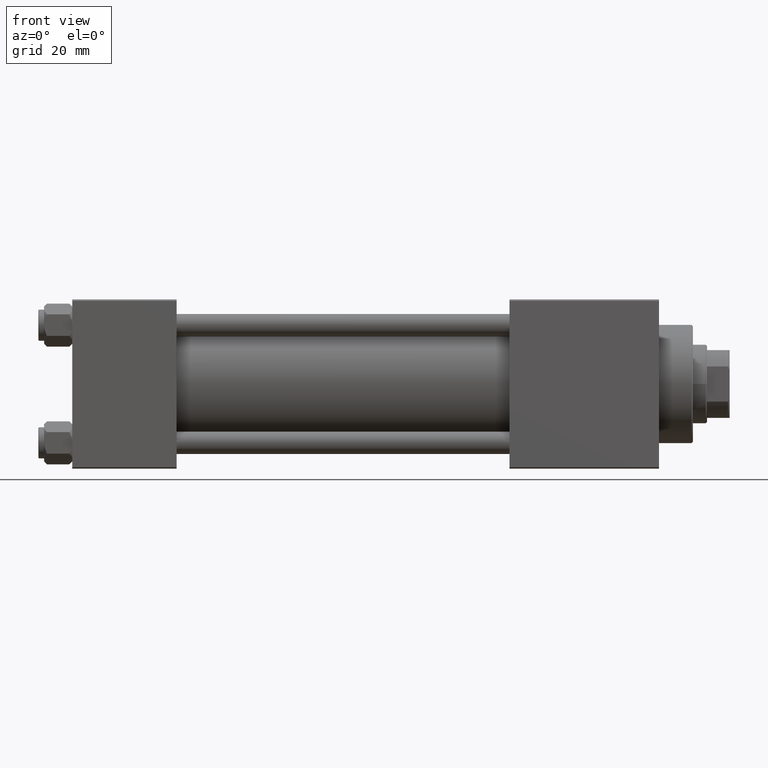
[diagram: clean part render]
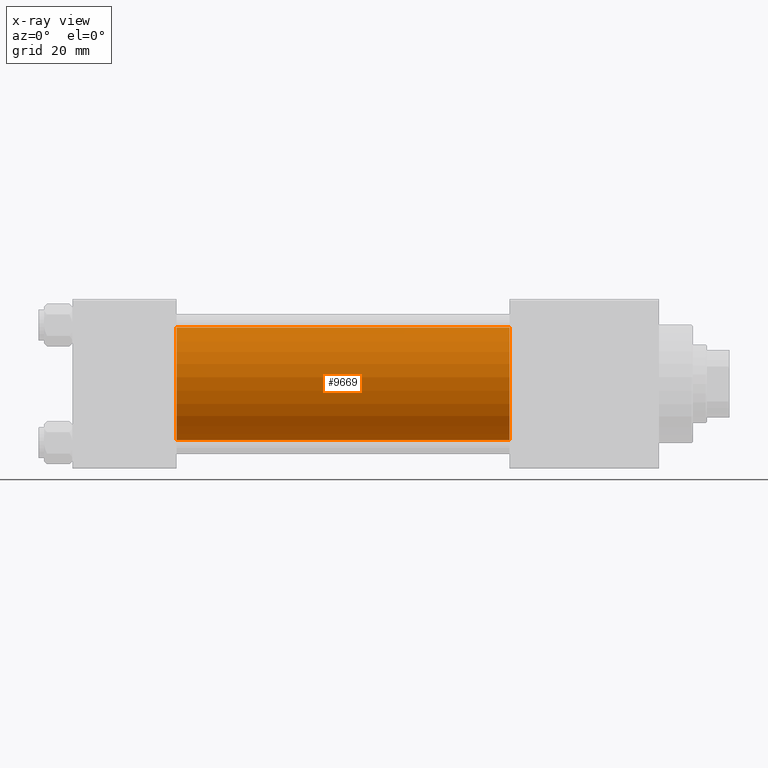
[diagram: x-ray — body ghosted, one internal face saturated and labeled with its STEP entity id]
A machine part, front view, then the same camera in x-ray: the body is ghosted and one INTERNAL B-rep face — a face not visible from any outside direction — is saturated and labeled: STEP entity #9669.
In plain terms, the highlighted cylindrical surface (partial cylindrical patch) has radius 20 mm, axis along (-1, -0, -0).
Its self-contained STEP definition (entity closure, byte-faithful):
#1754 = DIRECTION ( 'NONE',  ( 1.000000000000000000, 0.000000000000000000, 0.000000000000000000 ) ) ;
#2107 = VERTEX_POINT ( 'NONE', #9193 ) ;
#2424 = ORIENTED_EDGE ( 'NONE', *, *, #23665, .T. ) ;
#4435 = DIRECTION ( 'NONE',  ( 1.000000000000000000, 0.000000000000000000, 0.000000000000000000 ) ) ;
#7907 = CARTESIAN_POINT ( 'NONE',  ( 155.0000000000000000, -1.527916156705042519E-16, -20.00000000000000000 ) ) ;
#8621 = FACE_OUTER_BOUND ( 'NONE', #8988, .T. ) ;
#8988 = EDGE_LOOP ( 'NONE', ( #19120, #2424, #39066, #42269 ) ) ;
#9193 = CARTESIAN_POINT ( 'NONE',  ( 37.00000000000000000, -2.602085213965210642E-15, 20.00000000000000000 ) ) ;
#9465 = CARTESIAN_POINT ( 'NONE',  ( 155.0000000000000000, -2.602085213965210642E-15, 20.00000000000000000 ) ) ;
#9669 = ADVANCED_FACE ( 'NONE', ( #8621 ), #40946, .F. ) ;
#10223 = EDGE_CURVE ( 'NONE', #47767, #46737, #11723, .T. ) ;
#11105 = CARTESIAN_POINT ( 'NONE',  ( 155.0000000000000000, -2.602085213965210642E-15, 20.00000000000000000 ) ) ;
#11723 = CIRCLE ( 'NONE', #16721, 20.00000000000000000 ) ;
#12511 = CARTESIAN_POINT ( 'NONE',  ( 37.00000000000000000, -2.602085213965210642E-15, 0.000000000000000000 ) ) ;
#12532 = DIRECTION ( 'NONE',  ( -1.000000000000000000, -0.000000000000000000, -0.000000000000000000 ) ) ;
#14266 = CARTESIAN_POINT ( 'NONE',  ( 155.0000000000000000, -1.527916156705042519E-16, -20.00000000000000000 ) ) ;
#14583 = EDGE_CURVE ( 'NONE', #47767, #2107, #30395, .T. ) ;
#15524 = DIRECTION ( 'NONE',  ( -1.000000000000000000, -0.000000000000000000, -0.000000000000000000 ) ) ;
#16721 = AXIS2_PLACEMENT_3D ( 'NONE', #37472, #1754, #33566 ) ;
#17214 = DIRECTION ( 'NONE',  ( 0.000000000000000000, 0.000000000000000000, 1.000000000000000000 ) ) ;
#19120 = ORIENTED_EDGE ( 'NONE', *, *, #10223, .T. ) ;
#23665 = EDGE_CURVE ( 'NONE', #46737, #35109, #25042, .T. ) ;
#24422 = AXIS2_PLACEMENT_3D ( 'NONE', #12511, #4435, #32842 ) ;
#25042 = LINE ( 'NONE', #14266, #45512 ) ;
#26716 = AXIS2_PLACEMENT_3D ( 'NONE', #48792, #12532, #17214 ) ;
#30167 = DIRECTION ( 'NONE',  ( -1.000000000000000000, -0.000000000000000000, -0.000000000000000000 ) ) ;
#30395 = LINE ( 'NONE', #11105, #47623 ) ;
#32842 = DIRECTION ( 'NONE',  ( 0.000000000000000000, 0.000000000000000000, -1.000000000000000000 ) ) ;
#33566 = DIRECTION ( 'NONE',  ( 0.000000000000000000, 0.000000000000000000, -1.000000000000000000 ) ) ;
#35109 = VERTEX_POINT ( 'NONE', #49962 ) ;
#37472 = CARTESIAN_POINT ( 'NONE',  ( 155.0000000000000000, -2.602085213965210642E-15, 0.000000000000000000 ) ) ;
#39066 = ORIENTED_EDGE ( 'NONE', *, *, #42553, .F. ) ;
#40946 = CYLINDRICAL_SURFACE ( 'NONE', #26716, 20.00000000000000000 ) ;
#42269 = ORIENTED_EDGE ( 'NONE', *, *, #14583, .F. ) ;
#42553 = EDGE_CURVE ( 'NONE', #2107, #35109, #42756, .T. ) ;
#42756 = CIRCLE ( 'NONE', #24422, 20.00000000000000000 ) ;
#45512 = VECTOR ( 'NONE', #30167, 1000.000000000000000 ) ;
#46737 = VERTEX_POINT ( 'NONE', #7907 ) ;
#47623 = VECTOR ( 'NONE', #15524, 1000.000000000000000 ) ;
#47767 = VERTEX_POINT ( 'NONE', #9465 ) ;
#48792 = CARTESIAN_POINT ( 'NONE',  ( 155.0000000000000000, -2.602085213965210642E-15, 0.000000000000000000 ) ) ;
#49962 = CARTESIAN_POINT ( 'NONE',  ( 37.00000000000000000, -1.527916156705042519E-16, -20.00000000000000000 ) ) ;